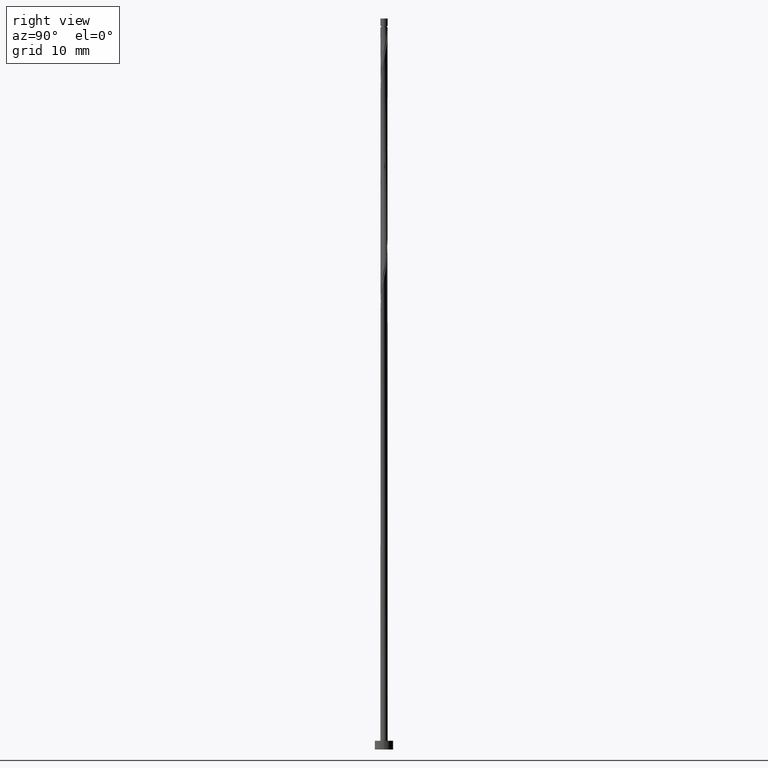
[diagram: clean part render]
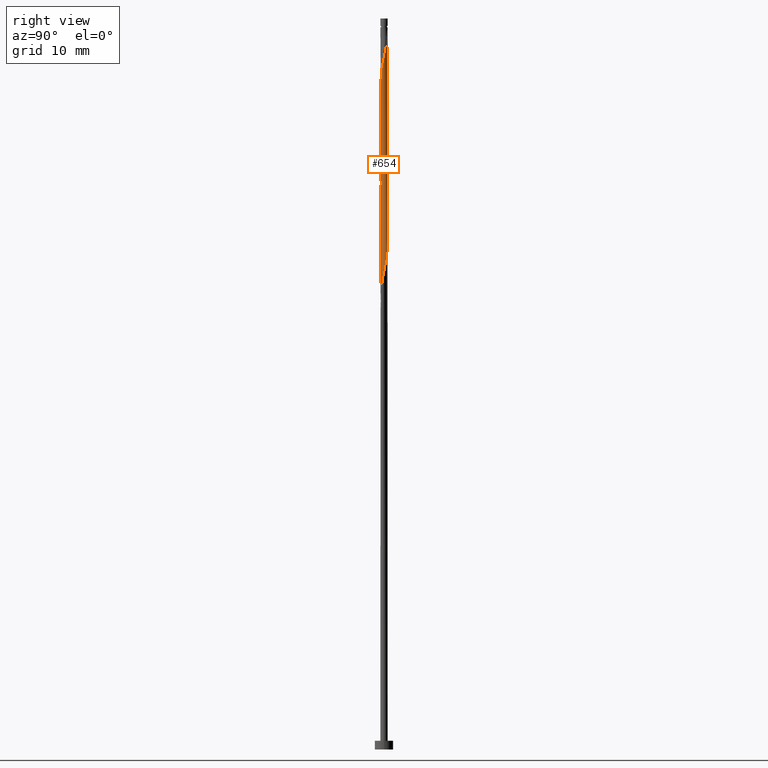
[diagram: same view with one face highlighted and labeled with its STEP entity id]
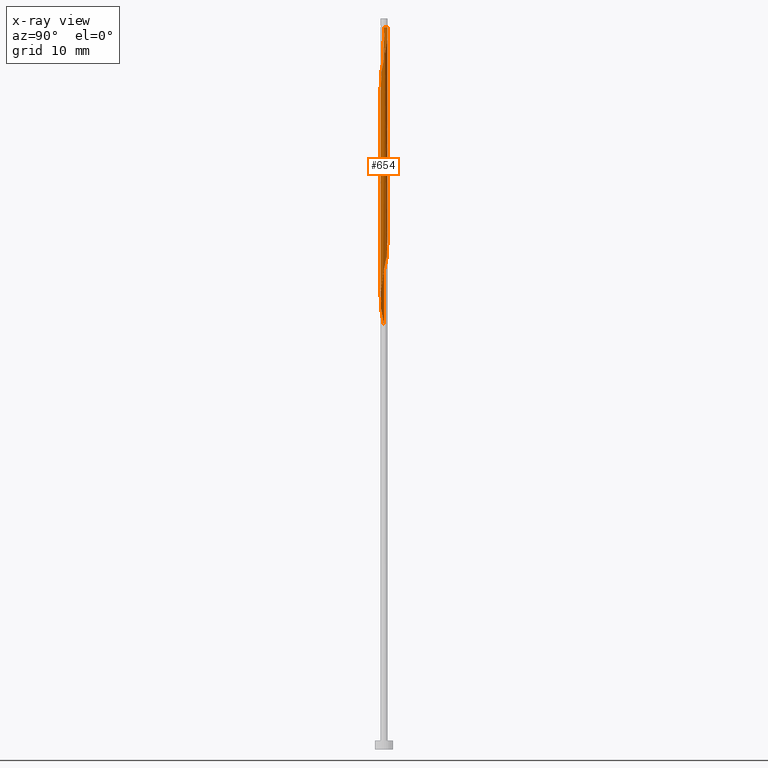
[diagram: x-ray of the same camera — body ghosted, the highlighted face saturated]
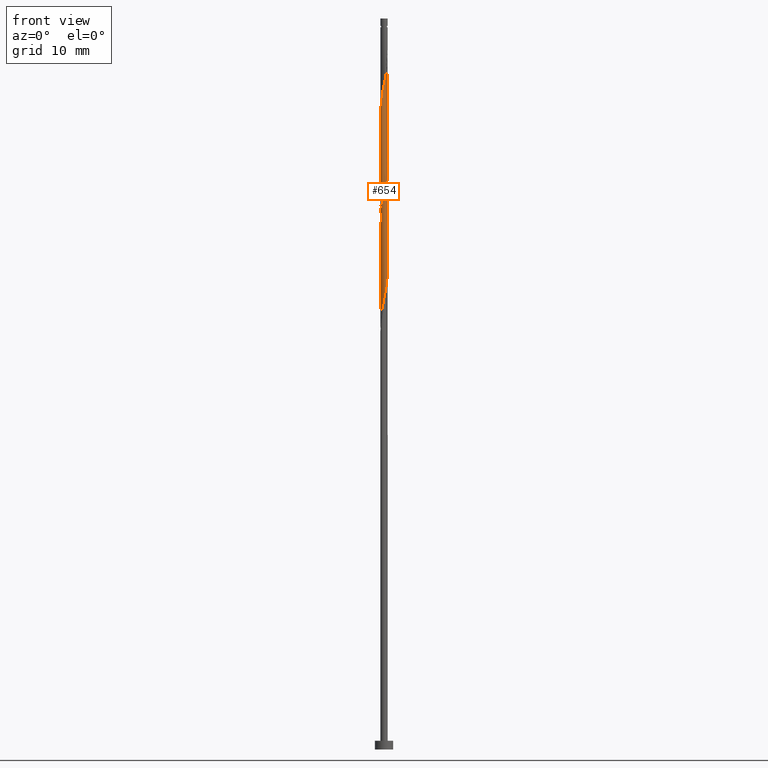
[diagram: same view with one face highlighted and labeled with its STEP entity id]
A machine part, right view. The second image highlights one B-rep face of the part: STEP entity #654.
The next image is the same camera in x-ray: the body ghosted, the highlighted face saturated — about 0% of this face is hidden behind the body in this view.
A second angle (front view) of the same face is appended — the face is thin or edge-on in the first view.
In plain terms, the highlighted cylindrical surface (bore or boss wall) has radius 0.5 mm, axis along (-0, -0, -1).
Its self-contained STEP definition (entity closure, byte-faithful):
#16 = EDGE_CURVE ( 'NONE', #1208, #1224, #1036, .T. ) ;
#17 = VECTOR ( 'NONE', #840, 1000.000000000000000 ) ;
#18 = CARTESIAN_POINT ( 'NONE',  ( 0.1858989642578099122, 0.4724556869372143475, 83.38333333333332575 ) ) ;
#39 = CARTESIAN_POINT ( 'NONE',  ( 0.09949874371066202983, 0.4900000000000007683, 83.79999999999998295 ) ) ;
#44 = CARTESIAN_POINT ( 'NONE',  ( -0.09949874371066166900, 0.4899999999999998801, 98.79999999999999716 ) ) ;
#59 = CARTESIAN_POINT ( 'NONE',  ( 0.1612817931379155190, 0.4814156044766936260, 97.54999999999999716 ) ) ;
#63 = VERTEX_POINT ( 'NONE', #1285 ) ;
#65 = CARTESIAN_POINT ( 'NONE',  ( 0.3162091449211504313, -0.3972210690530859067, 78.38333333333332575 ) ) ;
#79 = CARTESIAN_POINT ( 'NONE',  ( 0.4975590398240158918, -0.1010336722130055764, 80.05000000000002558 ) ) ;
#86 = CARTESIAN_POINT ( 'NONE',  ( 0.07409163498720061636, -0.4944799587697402687, 77.13333333333332575 ) ) ;
#87 = CARTESIAN_POINT ( 'NONE',  ( 0.1858989642578097734, -0.4724556869372145695, 91.71666666666665435 ) ) ;
#91 = AXIS2_PLACEMENT_3D ( 'NONE', #1308, #241, #1284 ) ;
#93 = CARTESIAN_POINT ( 'NONE',  ( -0.5000000000000014433, -0.08152718591022664607, 58.41469696061894012 ) ) ;
#94 = CARTESIAN_POINT ( 'NONE',  ( 0.2610881054719552119, -0.4264188096004513095, 92.13333333333335418 ) ) ;
#100 = CARTESIAN_POINT ( 'NONE',  ( 0.5000000000000007772, 2.959782747103310096E-16, 80.52776939948985557 ) ) ;
#128 = VERTEX_POINT ( 'NONE', #44 ) ;
#136 = CARTESIAN_POINT ( 'NONE',  ( -0.5000000000000006661, 0.006450837166010866576, 87.99715376295075941 ) ) ;
#139 = CYLINDRICAL_SURFACE ( 'NONE', #91, 0.5000000000000000000 ) ;
#158 = VERTEX_POINT ( 'NONE', #1294 ) ;
#163 = CARTESIAN_POINT ( 'NONE',  ( -0.4975590398240160028, -0.1010336722130054932, 87.55000000000001137 ) ) ;
#177 = CARTESIAN_POINT ( 'NONE',  ( 0.2387454690295328086, -0.4393183367648896831, 77.96666666666666856 ) ) ;
#183 = CARTESIAN_POINT ( 'NONE',  ( 0.5021081091789604267, 0.07523461788412814932, 65.88333333333332575 ) ) ;
#189 = CARTESIAN_POINT ( 'NONE',  ( -0.4998335745014880205, 0.01289952716443853141, 72.96666666666664014 ) ) ;
#194 = CARTESIAN_POINT ( 'NONE',  ( -0.2610881054719552674, -0.4264188096004511985, 60.46666666666666146 ) ) ;
#195 = LINE ( 'NONE', #696, #17 ) ;
#222 = EDGE_CURVE ( 'NONE', #63, #1208, #1097, .T. ) ;
#227 = CARTESIAN_POINT ( 'NONE',  ( 0.4741018197097064957, 0.1588315603019300470, 81.29999999999999716 ) ) ;
#238 = CARTESIAN_POINT ( 'NONE',  ( -0.4998335745014880205, 0.01289952716443853141, 87.96666666666666856 ) ) ;
#241 = DIRECTION ( 'NONE',  ( -0.000000000000000000, -0.000000000000000000, -1.000000000000000000 ) ) ;
#250 = CARTESIAN_POINT ( 'NONE',  ( -0.5000000000000000000, 0.000000000000000000, 100.0000000000000000 ) ) ;
#262 = CARTESIAN_POINT ( 'NONE',  ( 0.4998335745014881315, -0.01289952716443870315, 80.46666666666661172 ) ) ;
#264 = CARTESIAN_POINT ( 'NONE',  ( 0.01309852316351374675, -0.5075443130627872446, 90.88333333333333997 ) ) ;
#271 = CARTESIAN_POINT ( 'NONE',  ( 0.4460955302404527867, 0.2424285027197315423, 66.71666666666668277 ) ) ;
#273 = DIRECTION ( 'NONE',  ( -0.000000000000000000, -0.000000000000000000, -1.000000000000000000 ) ) ;
#284 = CARTESIAN_POINT ( 'NONE',  ( -0.3162091449211504313, 0.3972210690530858512, 70.88333333333331154 ) ) ;
#296 = CARTESIAN_POINT ( 'NONE',  ( -0.4741018197097065512, -0.1588315603019298805, 58.80000000000000426 ) ) ;
#297 = CARTESIAN_POINT ( 'NONE',  ( 0.2387454690295330029, 0.4393183367648896831, 97.13333333333333997 ) ) ;
#311 = CARTESIAN_POINT ( 'NONE',  ( 0.4652780234504774182, 0.1830747412780303895, 95.46666666666666856 ) ) ;
#322 = ORIENTED_EDGE ( 'NONE', *, *, #16, .F. ) ;
#351 = CARTESIAN_POINT ( 'NONE',  ( -0.3162091449211504313, 0.3972210690530858512, 85.88333333333335418 ) ) ;
#373 = CARTESIAN_POINT ( 'NONE',  ( -0.4652780234504771961, 0.1830747412780305838, 87.13333333333333997 ) ) ;
#376 = CARTESIAN_POINT ( 'NONE',  ( 0.3362772466861008169, 0.3803819322636879940, 67.54999999999999716 ) ) ;
#378 = VECTOR ( 'NONE', #273, 1000.000000000000000 ) ;
#379 = CARTESIAN_POINT ( 'NONE',  ( 0.3362772466861005394, -0.3803819322636883271, 92.55000000000001137 ) ) ;
#387 = CARTESIAN_POINT ( 'NONE',  ( -0.09949874371066196044, -0.4900000000000007683, 76.30000000000001137 ) ) ;
#396 = CARTESIAN_POINT ( 'NONE',  ( -0.4975590398240158918, 0.1010336722130055070, 72.54999999999999716 ) ) ;
#402 = CARTESIAN_POINT ( 'NONE',  ( -0.01309852316351412145, -0.5075443130627871335, 61.71666666666667567 ) ) ;
#407 = CARTESIAN_POINT ( 'NONE',  ( 0.4652780234504772516, -0.1830747412780305561, 64.63333333333333997 ) ) ;
#408 = CARTESIAN_POINT ( 'NONE',  ( 0.4741018197097065512, -0.1588315603019302691, 93.80000000000001137 ) ) ;
#419 = ORIENTED_EDGE ( 'NONE', *, *, #222, .F. ) ;
#455 = CARTESIAN_POINT ( 'NONE',  ( 0.5000000000000007772, 2.959782747103310096E-16, 80.52776939948985557 ) ) ;
#471 =( BOUNDED_CURVE ( )  B_SPLINE_CURVE ( 2, ( #815, #1236, #262, #79, #597, #1139, #915, #65, #177, #483, #86, #1212, #387, #490, #1023, #497, #1007, #1335, #507, #898, #189, #396, #502, #1230, #1321, #284, #908, #1329, #590, #922, #611, #1015, #1218, #376, #708, #271, #1133, #183, #605, #1112, #407, #1029, #801, #694, #688, #1340, #929, #402, #821, #1144, #194, #1243, #618, #1041, #296, #93, #514 ),
 .UNSPECIFIED., .F., .T. ) 
 B_SPLINE_CURVE_WITH_KNOTS ( ( 3, 2, 2, 2, 2, 2, 2, 2, 2, 2, 2, 2, 2, 2, 2, 2, 2, 2, 2, 2, 2, 2, 2, 2, 2, 2, 2, 2, 3 ),
 ( 0.5545248053855290626, 0.5555555555555555802, 0.5694444444444444198, 0.5833333333333333703, 0.5972222222222222099, 0.6111111111111111605, 0.6250000000000000000, 0.6388888888888888395, 0.6527777777777777901, 0.6666666666666666297, 0.6805555555555555802, 0.6944444444444444198, 0.7083333333333333703, 0.7222222222222222099, 0.7361111111111111605, 0.7500000000000000000, 0.7638888888888888395, 0.7777777777777777901, 0.7916666666666666297, 0.8055555555555555802, 0.8194444444444444198, 0.8333333333333333703, 0.8472222222222222099, 0.8611111111111111605, 0.8750000000000000000, 0.8888888888888888395, 0.9027777777777777901, 0.9166666666666666297, 0.9295248053855293957 ),
 .UNSPECIFIED. ) 
 CURVE ( )  GEOMETRIC_REPRESENTATION_ITEM ( )  RATIONAL_B_SPLINE_CURVE ( ( 0.9071930855141273620, 0.9080659294509749735, 0.9090909090909150558, 0.8952797754656496299, 0.9090909090909150558, 0.8952797754656496299, 0.9090909090909150558, 0.8952797754656496299, 0.9090909090909150558, 0.8952797754656496299, 0.9090909090909150558, 0.8952797754656496299, 0.9090909090909150558, 0.8952797754656496299, 0.9090909090909150558, 0.8952797754656496299, 0.9090909090909150558, 0.8952797754656496299, 0.9090909090909150558, 0.8952797754656496299, 0.9090909090909150558, 0.8952797754656496299, 0.9090909090909150558, 0.8952797754656496299, 0.9090909090909150558, 0.8952797754656496299, 0.9090909090909150558, 0.8952797754656496299, 0.9090909090909150558, 0.8952797754656496299, 0.9090909090909150558, 0.8952797754656496299, 0.9090909090909150558, 0.8952797754656496299, 0.9090909090909150558, 0.8952797754656496299, 0.9090909090909150558, 0.8952797754656496299, 0.9090909090909150558, 0.8952797754656496299, 0.9090909090909150558, 0.8952797754656496299, 0.9090909090909150558, 0.8952797754656496299, 0.9090909090909150558, 0.8952797754656496299, 0.9090909090909150558, 0.8952797754656496299, 0.9090909090909150558, 0.8952797754656496299, 0.9090909090909150558, 0.8952797754656496299, 0.9090909090909150558, 0.8952797754656496299, 0.9090909090909150558, 0.8963047551055893791, 0.9071930855141279171 ) ) 
 REPRESENTATION_ITEM ( '' )  );
#483 = CARTESIAN_POINT ( 'NONE',  ( 0.1612817931379150194, -0.4814156044766936260, 77.55000000000002558 ) ) ;
#490 = CARTESIAN_POINT ( 'NONE',  ( -0.1858989642578100510, -0.4724556869372142365, 75.88333333333333997 ) ) ;
#497 = CARTESIAN_POINT ( 'NONE',  ( -0.3362772466861005394, -0.3803819322636881606, 75.05000000000001137 ) ) ;
#502 = CARTESIAN_POINT ( 'NONE',  ( -0.4652780234504771961, 0.1830747412780305838, 72.13333333333333997 ) ) ;
#507 = CARTESIAN_POINT ( 'NONE',  ( -0.4741018197097065512, -0.1588315603019298805, 73.79999999999999716 ) ) ;
#508 = CARTESIAN_POINT ( 'NONE',  ( -0.2387454690295328918, -0.4393183367648896831, 89.63333333333331154 ) ) ;
#514 = CARTESIAN_POINT ( 'NONE',  ( -0.5000000000000006661, -4.855164127740446616E-16, 58.02776939948987689 ) ) ;
#517 = CARTESIAN_POINT ( 'NONE',  ( -0.5000000000000007772, -9.803696796398973244E-17, 87.07223060051012453 ) ) ;
#523 = CARTESIAN_POINT ( 'NONE',  ( -0.09949874371066166900, 0.4899999999999998801, 98.80000000000001137 ) ) ;
#553 = CARTESIAN_POINT ( 'NONE',  ( -0.3746030759990446324, 0.3311684396980706935, 86.29999999999999716 ) ) ;
#560 = CARTESIAN_POINT ( 'NONE',  ( -0.1612817931379151581, 0.4814156044766936260, 85.04999999999996874 ) ) ;
#567 = CARTESIAN_POINT ( 'NONE',  ( 0.01309852316351392196, 0.5075443130627870225, 84.21666666666668277 ) ) ;
#570 = FACE_OUTER_BOUND ( 'NONE', #861, .T. ) ;
#585 = CARTESIAN_POINT ( 'NONE',  ( 0.4329970070769391111, 0.2651158103430553137, 95.88333333333333997 ) ) ;
#590 = CARTESIAN_POINT ( 'NONE',  ( -0.07409163498720063024, 0.4944799587697402687, 69.63333333333333997 ) ) ;
#592 = CARTESIAN_POINT ( 'NONE',  ( -0.4998335745014880205, -0.01289952716443847763, 87.13333333333333997 ) ) ;
#597 = CARTESIAN_POINT ( 'NONE',  ( 0.4652780234504772516, -0.1830747412780305561, 79.63333333333333997 ) ) ;
#600 = AXIS2_PLACEMENT_3D ( 'NONE', #789, #661, #1206 ) ;
#605 = CARTESIAN_POINT ( 'NONE',  ( 0.4998335745014881315, -0.01289952716443870315, 65.46666666666666856 ) ) ;
#611 = CARTESIAN_POINT ( 'NONE',  ( 0.09949874371066202983, 0.4900000000000007683, 68.80000000000001137 ) ) ;
#618 = CARTESIAN_POINT ( 'NONE',  ( -0.3911863884632766353, -0.3114052174917097404, 59.63333333333333286 ) ) ;
#625 = CARTESIAN_POINT ( 'NONE',  ( 0.5021081091789604267, -0.07523461788412882933, 94.21666666666666856 ) ) ;
#654 = ADVANCED_FACE ( 'NONE', ( #570 ), #139, .T. ) ;
#661 = DIRECTION ( 'NONE',  ( -0.000000000000000000, -0.000000000000000000, -1.000000000000000000 ) ) ;
#663 = CARTESIAN_POINT ( 'NONE',  ( -0.4329970070769387780, 0.2651158103430555912, 86.71666666666666856 ) ) ;
#682 = CARTESIAN_POINT ( 'NONE',  ( 0.4460955302404527867, 0.2424285027197315423, 81.71666666666664014 ) ) ;
#688 = CARTESIAN_POINT ( 'NONE',  ( 0.2387454690295328086, -0.4393183367648896831, 62.96666666666668277 ) ) ;
#690 = CARTESIAN_POINT ( 'NONE',  ( -0.5000000000000007772, -0.006450837166011485872, 87.10284623704926332 ) ) ;
#694 = CARTESIAN_POINT ( 'NONE',  ( 0.3162091449211504313, -0.3972210690530859067, 63.38333333333333286 ) ) ;
#696 = CARTESIAN_POINT ( 'NONE',  ( -0.5000000000000000000, 0.000000000000000000, 100.0000000000000000 ) ) ;
#708 = CARTESIAN_POINT ( 'NONE',  ( 0.3911863884632766353, 0.3114052174917097404, 67.13333333333333997 ) ) ;
#722 = CARTESIAN_POINT ( 'NONE',  ( -0.5000000000000006661, 1.559254633332027816E-16, 88.02776939948988399 ) ) ;
#727 = ORIENTED_EDGE ( 'NONE', *, *, #1149, .F. ) ;
#729 = CARTESIAN_POINT ( 'NONE',  ( -0.3162091449211504868, -0.3972210690530860178, 89.21666666666668277 ) ) ;
#736 = CARTESIAN_POINT ( 'NONE',  ( 0.07409163498720100494, 0.4944799587697403798, 97.96666666666666856 ) ) ;
#760 = ORIENTED_EDGE ( 'NONE', *, *, #1149, .T. ) ;
#767 = CARTESIAN_POINT ( 'NONE',  ( -0.4975590398240158918, 0.1010336722130055070, 87.54999999999999716 ) ) ;
#789 = CARTESIAN_POINT ( 'NONE',  ( 0.000000000000000000, 0.000000000000000000, 98.79999999999999716 ) ) ;
#795 = CARTESIAN_POINT ( 'NONE',  ( -0.07409163498720072738, -0.4944799587697403798, 90.46666666666665435 ) ) ;
#801 = CARTESIAN_POINT ( 'NONE',  ( 0.3746030759990445214, -0.3311684396980708600, 63.80000000000001137 ) ) ;
#806 = EDGE_CURVE ( 'NONE', #1224, #158, #471, .T. ) ;
#815 = CARTESIAN_POINT ( 'NONE',  ( 0.5000000000000007772, 2.959782747103310096E-16, 80.52776939948985557 ) ) ;
#821 = CARTESIAN_POINT ( 'NONE',  ( -0.09949874371066196044, -0.4900000000000007683, 61.29999999999999716 ) ) ;
#828 = CARTESIAN_POINT ( 'NONE',  ( 0.4998335745014880205, 0.01289952716443851580, 94.63333333333335418 ) ) ;
#834 = CARTESIAN_POINT ( 'NONE',  ( 0.3162091449211505423, 0.3972210690530860178, 96.71666666666665435 ) ) ;
#840 = DIRECTION ( 'NONE',  ( -0.000000000000000000, -0.000000000000000000, -1.000000000000000000 ) ) ;
#853 = VECTOR ( 'NONE', #1191, 1000.000000000000000 ) ;
#861 = EDGE_LOOP ( 'NONE', ( #419, #1096, #909, #973, #1016, #727, #760, #322 ) ) ;
#864 = CARTESIAN_POINT ( 'NONE',  ( 0.2610881054719556005, 0.4264188096004509765, 82.96666666666664014 ) ) ;
#892 = CARTESIAN_POINT ( 'NONE',  ( -0.01309852316351531321, 0.5075443130627873556, 98.38333333333332575 ) ) ;
#894 = CARTESIAN_POINT ( 'NONE',  ( -0.5000000000000006661, 1.559254633332027816E-16, 88.02776939948988399 ) ) ;
#898 = CARTESIAN_POINT ( 'NONE',  ( -0.5021081091789604267, -0.07523461788412846851, 73.38333333333332575 ) ) ;
#901 = EDGE_CURVE ( 'NONE', #63, #128, #1021, .T. ) ;
#908 = CARTESIAN_POINT ( 'NONE',  ( -0.2387454690295328086, 0.4393183367648896831, 70.46666666666666856 ) ) ;
#909 = ORIENTED_EDGE ( 'NONE', *, *, #1186, .F. ) ;
#915 = CARTESIAN_POINT ( 'NONE',  ( 0.3746030759990445214, -0.3311684396980708600, 78.80000000000002558 ) ) ;
#922 = CARTESIAN_POINT ( 'NONE',  ( 0.01309852316351392196, 0.5075443130627870225, 69.21666666666665435 ) ) ;
#929 = CARTESIAN_POINT ( 'NONE',  ( 0.07409163498720061636, -0.4944799587697402687, 62.13333333333331865 ) ) ;
#930 = CARTESIAN_POINT ( 'NONE',  ( 0.4460955302404527867, -0.2424285027197316811, 93.38333333333333997 ) ) ;
#973 = ORIENTED_EDGE ( 'NONE', *, *, #1165, .T. ) ;
#981 = CARTESIAN_POINT ( 'NONE',  ( -0.07409163498720063024, 0.4944799587697402687, 84.63333333333332575 ) ) ;
#985 = CARTESIAN_POINT ( 'NONE',  ( 0.3911863884632766353, 0.3114052174917097404, 82.13333333333333997 ) ) ;
#1002 = CARTESIAN_POINT ( 'NONE',  ( 0.5000000000000000000, 6.123233995736766036E-17, 98.79999999999999716 ) ) ;
#1007 = CARTESIAN_POINT ( 'NONE',  ( -0.3911863884632766353, -0.3114052174917097404, 74.63333333333331154 ) ) ;
#1009 = CARTESIAN_POINT ( 'NONE',  ( -0.5000000000000007772, -9.803696796398973244E-17, 87.07223060051012453 ) ) ;
#1015 = CARTESIAN_POINT ( 'NONE',  ( 0.1858989642578099122, 0.4724556869372143475, 68.38333333333333997 ) ) ;
#1016 = ORIENTED_EDGE ( 'NONE', *, *, #806, .F. ) ;
#1018 = CARTESIAN_POINT ( 'NONE',  ( -0.4652780234504773071, -0.1830747412780305006, 87.96666666666666856 ) ) ;
#1021 = CIRCLE ( 'NONE', #600, 0.5000000000000002220 ) ;
#1023 = CARTESIAN_POINT ( 'NONE',  ( -0.2610881054719552674, -0.4264188096004511985, 75.46666666666665435 ) ) ;
#1029 = CARTESIAN_POINT ( 'NONE',  ( 0.4329970070769386670, -0.2651158103430559243, 64.21666666666665435 ) ) ;
#1036 =( BOUNDED_CURVE ( )  B_SPLINE_CURVE ( 2, ( #894, #136, #238, #767, #373, #663, #553, #351, #1085, #560, #981, #567, #39, #18, #864, #1316, #985, #682, #227, #1309, #455 ),
 .UNSPECIFIED., .F., .T. ) 
 B_SPLINE_CURVE_WITH_KNOTS ( ( 3, 2, 2, 2, 2, 2, 2, 2, 2, 2, 3 ),
 ( 0.4295248053855291737, 0.4305555555555555802, 0.4444444444444444198, 0.4583333333333333148, 0.4722222222222222099, 0.4861111111111111049, 0.5000000000000000000, 0.5138888888888888395, 0.5277777777777777901, 0.5416666666666666297, 0.5545248053855290626 ),
 .UNSPECIFIED. ) 
 CURVE ( )  GEOMETRIC_REPRESENTATION_ITEM ( )  RATIONAL_B_SPLINE_CURVE ( ( 0.9071930855141275840, 0.9080659294509750845, 0.9090909090909150558, 0.8952797754656496299, 0.9090909090909150558, 0.8952797754656496299, 0.9090909090909150558, 0.8952797754656496299, 0.9090909090909150558, 0.8952797754656496299, 0.9090909090909150558, 0.8952797754656496299, 0.9090909090909150558, 0.8952797754656496299, 0.9090909090909150558, 0.8952797754656496299, 0.9090909090909150558, 0.8952797754656496299, 0.9090909090909150558, 0.8963047551055897122, 0.9071930855141273620 ) ) 
 REPRESENTATION_ITEM ( '' )  );
#1041 = CARTESIAN_POINT ( 'NONE',  ( -0.4460955302404527312, -0.2424285027197316256, 59.21666666666666146 ) ) ;
#1043 = CARTESIAN_POINT ( 'NONE',  ( -0.1612817931379152137, -0.4814156044766937370, 90.05000000000002558 ) ) ;
#1049 = CARTESIAN_POINT ( 'NONE',  ( 0.3746030759990447989, 0.3311684396980708045, 96.30000000000001137 ) ) ;
#1085 = CARTESIAN_POINT ( 'NONE',  ( -0.2387454690295328086, 0.4393183367648896831, 85.46666666666665435 ) ) ;
#1096 = ORIENTED_EDGE ( 'NONE', *, *, #901, .T. ) ;
#1097 = LINE ( 'NONE', #250, #853 ) ;
#1112 = CARTESIAN_POINT ( 'NONE',  ( 0.4975590398240158918, -0.1010336722130055764, 65.04999999999999716 ) ) ;
#1114 = CARTESIAN_POINT ( 'NONE',  ( 0.09949874371066182166, -0.4900000000000008238, 91.30000000000002558 ) ) ;
#1122 = CARTESIAN_POINT ( 'NONE',  ( -0.4329970070769388890, -0.2651158103430555912, 88.38333333333331154 ) ) ;
#1133 = CARTESIAN_POINT ( 'NONE',  ( 0.4741018197097064957, 0.1588315603019300470, 66.29999999999999716 ) ) ;
#1139 = CARTESIAN_POINT ( 'NONE',  ( 0.4329970070769386670, -0.2651158103430559243, 79.21666666666665435 ) ) ;
#1144 = CARTESIAN_POINT ( 'NONE',  ( -0.1858989642578100510, -0.4724556869372142365, 60.88333333333333286 ) ) ;
#1149 = EDGE_CURVE ( 'NONE', #1274, #1224, #1220, .T. ) ;
#1165 = EDGE_CURVE ( 'NONE', #1200, #158, #195, .T. ) ;
#1186 = EDGE_CURVE ( 'NONE', #1200, #128, #1315, .T. ) ;
#1191 = DIRECTION ( 'NONE',  ( -0.000000000000000000, -0.000000000000000000, -1.000000000000000000 ) ) ;
#1200 = VERTEX_POINT ( 'NONE', #517 ) ;
#1206 = DIRECTION ( 'NONE',  ( -1.000000000000000000, 0.000000000000000000, 0.000000000000000000 ) ) ;
#1208 = VERTEX_POINT ( 'NONE', #722 ) ;
#1212 = CARTESIAN_POINT ( 'NONE',  ( -0.01309852316351412145, -0.5075443130627871335, 76.71666666666666856 ) ) ;
#1218 = CARTESIAN_POINT ( 'NONE',  ( 0.2610881054719556005, 0.4264188096004509765, 67.96666666666668277 ) ) ;
#1220 = LINE ( 'NONE', #1355, #378 ) ;
#1224 = VERTEX_POINT ( 'NONE', #100 ) ;
#1230 = CARTESIAN_POINT ( 'NONE',  ( -0.4329970070769387780, 0.2651158103430555912, 71.71666666666664014 ) ) ;
#1236 = CARTESIAN_POINT ( 'NONE',  ( 0.5000000000000007772, -0.006450837166010383456, 80.49715376295073099 ) ) ;
#1243 = CARTESIAN_POINT ( 'NONE',  ( -0.3362772466861005394, -0.3803819322636881606, 60.04999999999998295 ) ) ;
#1244 = CARTESIAN_POINT ( 'NONE',  ( 0.4975590398240160028, 0.1010336722130053960, 95.04999999999998295 ) ) ;
#1274 = VERTEX_POINT ( 'NONE', #1002 ) ;
#1284 = DIRECTION ( 'NONE',  ( -1.000000000000000000, 0.000000000000000000, 0.000000000000000000 ) ) ;
#1285 = CARTESIAN_POINT ( 'NONE',  ( -0.5000000000000002220, 0.000000000000000000, 98.79999999999999716 ) ) ;
#1294 = CARTESIAN_POINT ( 'NONE',  ( -0.5000000000000006661, -4.855164127740446616E-16, 58.02776939948987689 ) ) ;
#1308 = CARTESIAN_POINT ( 'NONE',  ( 0.000000000000000000, 0.000000000000000000, 100.0000000000000000 ) ) ;
#1309 = CARTESIAN_POINT ( 'NONE',  ( 0.5000000000000006661, 0.08152718591022839467, 80.91469696061896855 ) ) ;
#1315 =( BOUNDED_CURVE ( )  B_SPLINE_CURVE ( 2, ( #1009, #690, #592, #163, #1018, #1122, #1317, #729, #508, #1043, #795, #264, #1114, #87, #94, #379, #1349, #930, #408, #625, #828, #1244, #311, #585, #1049, #834, #297, #59, #736, #892, #523 ),
 .UNSPECIFIED., .F., .T. ) 
 B_SPLINE_CURVE_WITH_KNOTS ( ( 3, 2, 2, 2, 2, 2, 2, 2, 2, 2, 2, 2, 2, 2, 2, 3 ),
 ( 0.5545248053855292847, 0.5555555555555555802, 0.5694444444444444198, 0.5833333333333332593, 0.5972222222222222099, 0.6111111111111112715, 0.6250000000000001110, 0.6388888888888889506, 0.6527777777777779011, 0.6666666666666668517, 0.6805555555555556912, 0.6944444444444446418, 0.7083333333333334814, 0.7222222222222224319, 0.7361111111111113825, 0.7500000000000002220 ),
 .UNSPECIFIED. ) 
 CURVE ( )  GEOMETRIC_REPRESENTATION_ITEM ( )  RATIONAL_B_SPLINE_CURVE ( ( 0.9071930855141279171, 0.9080659294509754176, 0.9090909090909153889, 0.8952797754656498519, 0.9090909090909153889, 0.8952797754656498519, 0.9090909090909153889, 0.8952797754656498519, 0.9090909090909153889, 0.8952797754656498519, 0.9090909090909153889, 0.8952797754656498519, 0.9090909090909153889, 0.8952797754656498519, 0.9090909090909153889, 0.8952797754656498519, 0.9090909090909153889, 0.8952797754656498519, 0.9090909090909153889, 0.8952797754656498519, 0.9090909090909153889, 0.8952797754656498519, 0.9090909090909153889, 0.8952797754656498519, 0.9090909090909153889, 0.8952797754656498519, 0.9090909090909153889, 0.8952797754656498519, 0.9090909090909153889, 0.8952797754656496299, 0.9090909090909156109 ) ) 
 REPRESENTATION_ITEM ( '' )  );
#1316 = CARTESIAN_POINT ( 'NONE',  ( 0.3362772466861008169, 0.3803819322636879940, 82.54999999999998295 ) ) ;
#1317 = CARTESIAN_POINT ( 'NONE',  ( -0.3746030759990447989, -0.3311684396980705825, 88.79999999999996874 ) ) ;
#1321 = CARTESIAN_POINT ( 'NONE',  ( -0.3746030759990446324, 0.3311684396980706935, 71.29999999999999716 ) ) ;
#1329 = CARTESIAN_POINT ( 'NONE',  ( -0.1612817931379151581, 0.4814156044766936260, 70.05000000000001137 ) ) ;
#1335 = CARTESIAN_POINT ( 'NONE',  ( -0.4460955302404527312, -0.2424285027197316256, 74.21666666666666856 ) ) ;
#1340 = CARTESIAN_POINT ( 'NONE',  ( 0.1612817931379150194, -0.4814156044766936260, 62.54999999999999716 ) ) ;
#1349 = CARTESIAN_POINT ( 'NONE',  ( 0.3911863884632766908, -0.3114052174917099070, 92.96666666666666856 ) ) ;
#1355 = CARTESIAN_POINT ( 'NONE',  ( 0.5000000000000000000, 6.123233995736766036E-17, 100.0000000000000000 ) ) ;